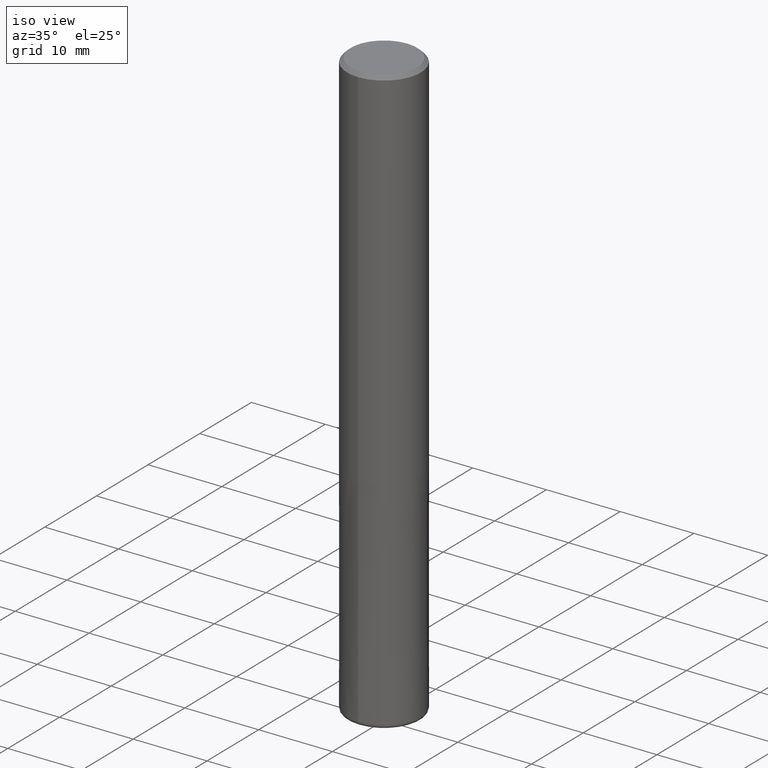
[diagram: clean part render]
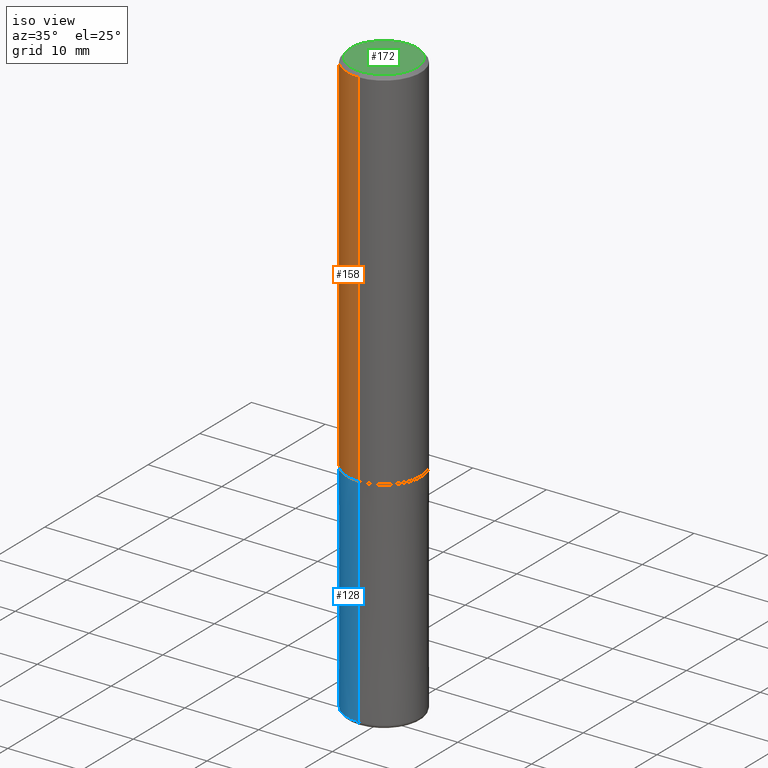
[diagram: same view with three faces highlighted in distinct colors, each labeled with its STEP entity id]
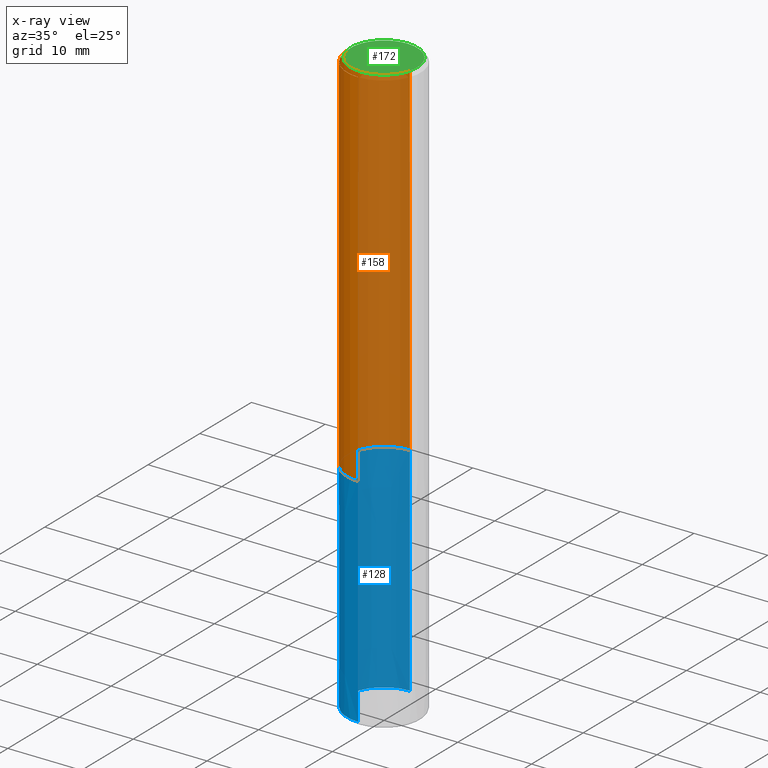
[diagram: x-ray of the same camera — body ghosted, the three highlighted faces saturated]
A machine part, iso view with three faces highlighted in distinct colors.
The next image is the same camera in x-ray (body ghosted, the three faces saturated) — at least one of them is partly hidden behind the body in this view.
Their STEP definitions:

[orange] entity #158 — the highlighted cylindrical surface (partial cylindrical patch) has radius 5 mm, axis along (-0, -0, 1).
#116=VERTEX_POINT('',#279);
#118=VERTEX_POINT('',#281);
#122=EDGE_CURVE('',#118,#222,#285,.T.);
#130=EDGE_CURVE('',#222,#188,#295,.T.);
#158=ADVANCED_FACE('',(#328),#329,.T.);
#188=VERTEX_POINT('',#361);
#222=VERTEX_POINT('',#398);
#226=EDGE_CURVE('',#116,#118,#403,.T.);
#244=EDGE_CURVE('',#116,#188,#425,.T.);
#279=CARTESIAN_POINT('',(6.12303176911189E-016,-5.0,-50.0));
#281=CARTESIAN_POINT('',(6.12303176911189E-016,-5.0,-0.5));
#285=CIRCLE('',#463,5.0);
#295=LINE('',#474,#475);
#328=FACE_OUTER_BOUND('',#514,.T.);
#329=CYLINDRICAL_SURFACE('',#515,5.0);
#361=CARTESIAN_POINT('',(0.0,5.0,-50.0));
#398=CARTESIAN_POINT('',(0.0,5.0,-0.5));
#403=LINE('',#610,#611);
#425=CIRCLE('',#638,5.0);
#463=AXIS2_PLACEMENT_3D('',#659,#660,#661);
#474=CARTESIAN_POINT('',(-6.12303176911189E-016,5.0,-25.25));
#475=VECTOR('',#678,1.0);
#514=EDGE_LOOP('',(#725,#726,#727,#728));
#515=AXIS2_PLACEMENT_3D('',#729,#730,#731);
#610=CARTESIAN_POINT('',(6.12303176911189E-016,-5.0,-25.25));
#611=VECTOR('',#810,1.0);
#638=AXIS2_PLACEMENT_3D('',#847,#848,#849);
#659=CARTESIAN_POINT('',(0.0,0.0,-0.5));
#660=DIRECTION('',(0.0,0.0,-1.0));
#661=DIRECTION('',(0.0,1.0,0.0));
#678=DIRECTION('',(0.0,0.0,-1.0));
#725=ORIENTED_EDGE('',*,*,#130,.T.);
#726=ORIENTED_EDGE('',*,*,#244,.F.);
#727=ORIENTED_EDGE('',*,*,#226,.T.);
#728=ORIENTED_EDGE('',*,*,#122,.T.);
#729=CARTESIAN_POINT('',(0.0,0.0,-25.25));
#730=DIRECTION('',(-0.0,-0.0,1.0));
#731=DIRECTION('',(0.0,1.0,0.0));
#810=DIRECTION('',(-0.0,-0.0,1.0));
#847=CARTESIAN_POINT('',(0.0,0.0,-50.0));
#848=DIRECTION('',(0.0,0.0,-1.0));
#849=DIRECTION('',(0.0,1.0,0.0));

[blue] entity #128 — the highlighted conical surface has half-angle 0 deg.
#114=VERTEX_POINT('',#277);
#128=ADVANCED_FACE('',(#292),#293,.T.);
#146=EDGE_CURVE('',#202,#186,#315,.T.);
#182=VERTEX_POINT('',#355);
#186=VERTEX_POINT('',#359);
#194=EDGE_CURVE('',#114,#182,#368,.T.);
#202=VERTEX_POINT('',#376);
#208=EDGE_CURVE('',#202,#114,#382,.T.);
#218=EDGE_CURVE('',#182,#186,#394,.T.);
#277=CARTESIAN_POINT('',(6.1229093084765E-016,-4.9999,-50.0));
#292=FACE_OUTER_BOUND('',#470,.T.);
#293=CONICAL_SURFACE('',#471,4.99995,3.38983050845369E-006);
#315=CIRCLE('',#497,5.0);
#355=CARTESIAN_POINT('',(0.0,4.9999,-50.0));
#359=CARTESIAN_POINT('',(0.0,5.0,-79.5));
#368=CIRCLE('',#563,4.9999);
#376=CARTESIAN_POINT('',(6.12303176911189E-016,-5.0,-79.5));
#382=LINE('',#584,#585);
#394=LINE('',#599,#600);
#470=EDGE_LOOP('',(#671,#672,#673,#674));
#471=AXIS2_PLACEMENT_3D('',#675,#676,#677);
#497=AXIS2_PLACEMENT_3D('',#706,#707,#708);
#563=AXIS2_PLACEMENT_3D('',#772,#773,#774);
#584=CARTESIAN_POINT('',(6.12297053879419E-016,-4.99995,-64.75));
#585=VECTOR('',#783,1.0);
#599=CARTESIAN_POINT('',(-6.1229705387942E-016,4.99995,-64.75));
#600=VECTOR('',#801,1.0);
#671=ORIENTED_EDGE('',*,*,#218,.T.);
#672=ORIENTED_EDGE('',*,*,#146,.F.);
#673=ORIENTED_EDGE('',*,*,#208,.T.);
#674=ORIENTED_EDGE('',*,*,#194,.T.);
#675=CARTESIAN_POINT('',(0.0,0.0,-64.75));
#676=DIRECTION('',(0.0,-0.0,-1.0));
#677=DIRECTION('',(0.0,1.0,0.0));
#706=CARTESIAN_POINT('',(0.0,0.0,-79.5));
#707=DIRECTION('',(0.0,0.0,-1.0));
#708=DIRECTION('',(0.0,1.0,0.0));
#772=CARTESIAN_POINT('',(0.0,0.0,-50.0));
#773=DIRECTION('',(0.0,0.0,-1.0));
#774=DIRECTION('',(0.0,1.0,0.0));
#783=DIRECTION('',(-4.15120797902538E-022,3.3898305084472E-006,0.999999999994255));
#801=DIRECTION('',(-4.15120797902538E-022,3.3898305084472E-006,-0.999999999994255));

[green] entity #172 — the highlighted planar face has unit normal (-0, 0, 1).
#168=EDGE_CURVE('',#238,#220,#340,.T.);
#172=ADVANCED_FACE('',(#344),#345,.T.);
#178=EDGE_CURVE('',#220,#238,#351,.T.);
#220=VERTEX_POINT('',#396);
#238=VERTEX_POINT('',#419);
#340=CIRCLE('',#527,4.5);
#344=FACE_OUTER_BOUND('',#532,.T.);
#345=PLANE('',#533);
#351=CIRCLE('',#542,4.5);
#396=CARTESIAN_POINT('',(0.0,4.5,0.0));
#419=CARTESIAN_POINT('',(5.5107285922007E-016,-4.5,0.0));
#527=AXIS2_PLACEMENT_3D('',#744,#745,#746);
#532=EDGE_LOOP('',(#751,#752));
#533=AXIS2_PLACEMENT_3D('',#753,#754,#755);
#542=AXIS2_PLACEMENT_3D('',#757,#758,#759);
#744=CARTESIAN_POINT('',(0.0,0.0,0.0));
#745=DIRECTION('',(0.0,0.0,-1.0));
#746=DIRECTION('',(0.0,1.0,0.0));
#751=ORIENTED_EDGE('',*,*,#178,.F.);
#752=ORIENTED_EDGE('',*,*,#168,.F.);
#753=CARTESIAN_POINT('',(0.0,2.25,0.0));
#754=DIRECTION('',(-0.0,0.0,1.0));
#755=DIRECTION('',(0.0,-1.0,0.0));
#757=CARTESIAN_POINT('',(0.0,0.0,0.0));
#758=DIRECTION('',(0.0,0.0,-1.0));
#759=DIRECTION('',(0.0,1.0,0.0));